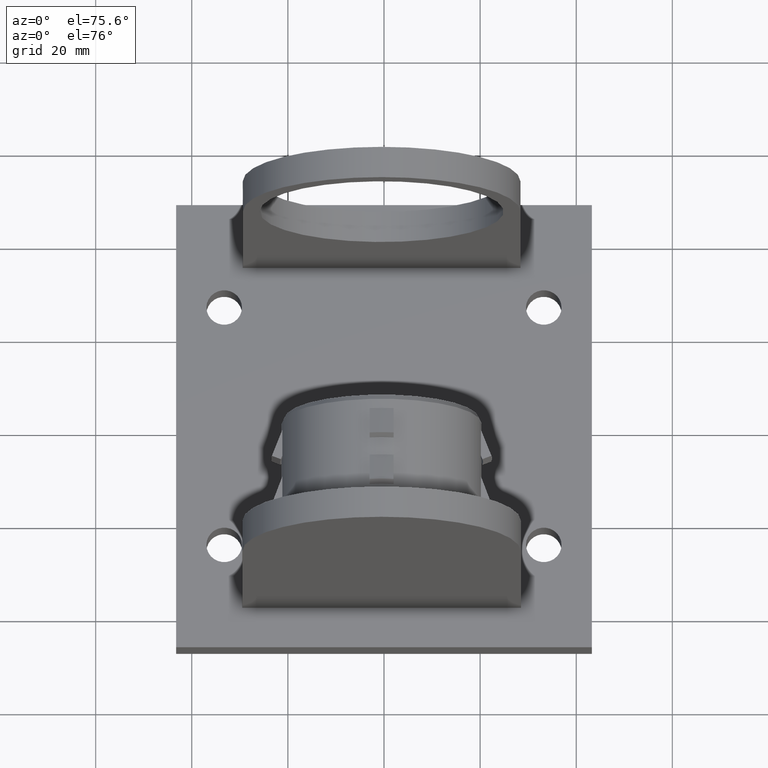
[diagram: clean part render]
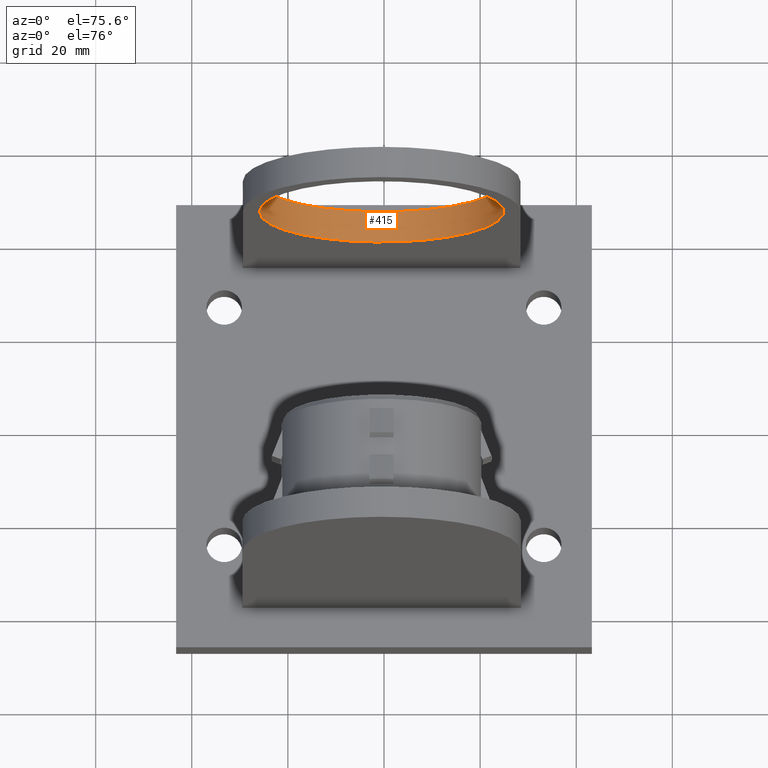
[diagram: same view with one face highlighted and labeled with its STEP entity id]
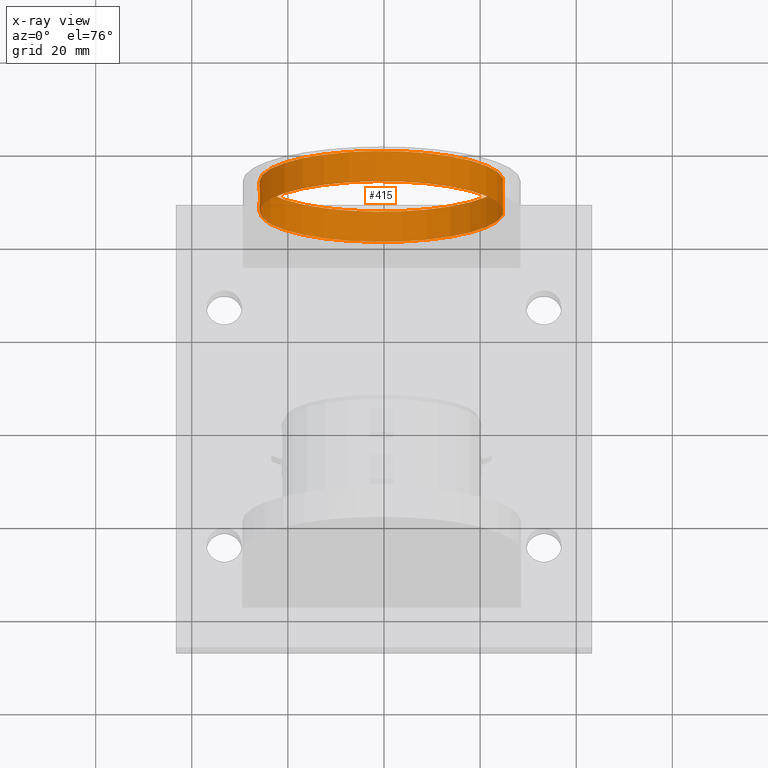
[diagram: x-ray of the same camera — body ghosted, the highlighted face saturated]
A machine part, auxiliary view. The second image highlights one B-rep face of the part: STEP entity #415.
The next image is the same camera in x-ray: the body ghosted, the highlighted face saturated — about 0% of this face is hidden behind the body in this view.
In plain terms, the highlighted cylindrical surface (bore or boss wall) has radius 25.4 mm, axis along (-0, 1, -0).
Its self-contained STEP definition (entity closure, byte-faithful):
#415=ADVANCED_FACE('',(#1532,#1534,#1536),#1538,.F.);
#1532=FACE_OUTER_BOUND('',#1533,.T.);
#1533=EDGE_LOOP('',(#2420));
#1534=FACE_BOUND('',#1535,.T.);
#1535=EDGE_LOOP('',(#2421,#2422,#2423));
#1536=FACE_OUTER_BOUND('',#1537,.T.);
#1537=EDGE_LOOP('',(#2424));
#1538=CYLINDRICAL_SURFACE('',#1539,25.4);
#1539=AXIS2_PLACEMENT_3D('',#1540,#1541,#1542);
#1540=CARTESIAN_POINT('',(0.,0.,0.));
#1541=DIRECTION('',(0.,1.,0.));
#1542=DIRECTION('',(1.,0.,0.));
#2420=ORIENTED_EDGE('',*,*,#3018,.F.);
#2421=ORIENTED_EDGE('',*,*,#3019,.T.);
#2422=ORIENTED_EDGE('',*,*,#3020,.T.);
#2423=ORIENTED_EDGE('',*,*,#3021,.T.);
#2424=ORIENTED_EDGE('',*,*,#3022,.F.);
#3018=EDGE_CURVE('',#3381,#3381,#3382,.F.);
#3019=EDGE_CURVE('',#3383,#3384,#3385,.F.);
#3020=EDGE_CURVE('',#3384,#3386,#3387,.F.);
#3021=EDGE_CURVE('',#3386,#3383,#3388,.T.);
#3022=EDGE_CURVE('',#3389,#3389,#3390,.T.);
#3381=VERTEX_POINT('',#4121);
#3382=CIRCLE('',#4122,25.4);
#3383=VERTEX_POINT('',#4126);
#3384=VERTEX_POINT('',#4127);
#3385=B_SPLINE_CURVE_WITH_KNOTS('',3,
(#4128,#4129,#4130,#4131,#4132,#4133,#4134,#4135,#4136,#4137,#4138,#4139,#4140,#4141,
#4142,#4143,#4144,#4145,#4146,#4147),
.UNSPECIFIED.,.F.,.F.,
(4,1,1,1,1,1,1,1,1,1,1,1,1,1,1,1,1,4),
(0.,0.0532258956022414,0.110858262969364,0.172919015062311,0.243831473463918,0.319162782098423,
0.394513457163386,0.46546832689459,0.532035012685195,0.598611051608997,0.678588266774245,
0.771906318465807,0.853343168117302,0.909480036282395,0.936878767804627,0.96070036101691,
0.980544681474811,1.),
.UNSPECIFIED.);
#3386=VERTEX_POINT('',#4148);
#3387=B_SPLINE_CURVE_WITH_KNOTS('',3,
(#4149,#4150,#4151,#4152,#4153,#4154,#4155,#4156,#4157,#4158,#4159,#4160,#4161,#4162,
#4163,#4164,#4165,#4166,#4167,#4168,#4169,#4170,#4171,#4172,#4173,#4174,#4175,#4176,
#4177,#4178,#4179,#4180,#4181,#4182,#4183,#4184,#4185,#4186,#4187,#4188,#4189,#4190,
#4191,#4192,#4193,#4194,#4195,#4196,#4197),
.UNSPECIFIED.,.F.,.F.,
(4,1,1,1,1,1,1,1,1,1,1,1,1,1,1,1,1,1,1,1,1,1,1,1,1,1,1,1,1,1,1,1,1,1,1,1,1,1,1,1,
1,1,1,1,1,1,4),
(0.,0.0115813740011568,0.0231840152737657,0.0348122041847782,0.0465174745855109,
0.058262887993896,0.0715505994411202,0.086341160113934,0.10834865825408,0.130619149959619,
0.153125449502113,0.168861282457993,0.183305718313062,0.196466439437563,0.209642322389445,
0.22347739132344,0.237950198812609,0.253715623366416,0.270145201478209,0.290251702070949,
0.313366538443733,0.348753679242503,0.384718229571973,0.421192803011968,0.446483810642777,
0.469269336247976,0.489157250807685,0.508684159124602,0.529672663707712,0.552479159120241,
0.579418314093613,0.608710752537695,0.65522060830907,0.701724762299884,0.74814999381496,
0.777295385672147,0.804066505542407,0.826235081660111,0.846147147074147,0.869526953458532,
0.892706778613375,0.915732143862818,0.932768456897555,0.949730510801622,0.966548965591262,
0.983309133906787,1.),
.UNSPECIFIED.);
#3388=B_SPLINE_CURVE_WITH_KNOTS('',3,
(#4198,#4199,#4200,#4201,#4202,#4203,#4204,#4205,#4206,#4207,#4208,#4209,#4210,#4211,
#4212,#4213,#4214,#4215,#4216,#4217,#4218,#4219,#4220,#4221,#4222,#4223,#4224,#4225,
#4226,#4227,#4228,#4229,#4230,#4231,#4232,#4233,#4234,#4235,#4236,#4237,#4238,#4239,
#4240,#4241,#4242,#4243,#4244,#4245,#4246,#4247,#4248,#4249,#4250,#4251,#4252,#4253,
#4254,#4255,#4256,#4257,#4258,#4259,#4260,#4261,#4262,#4263,#4264,#4265,#4266,#4267,
#4268,#4269,#4270,#4271,#4272,#4273,#4274,#4275,#4276,#4277,#4278,#4279,#4280,#4281,
#4282,#4283),
.UNSPECIFIED.,.F.,.F.,
(4,1,1,1,1,1,1,1,1,1,1,1,1,1,1,1,1,1,1,1,1,1,1,1,1,1,1,1,1,1,1,1,1,1,1,1,1,1,1,1,
1,1,1,1,1,1,1,1,1,1,1,1,1,1,1,1,1,1,1,1,1,1,1,1,1,1,1,1,1,1,1,1,1,1,1,1,1,1,1,1,
1,1,1,4),
(0.,0.00579079278219624,0.0115922198949768,0.0174064215502877,0.0232591653686539,
0.0291319814988926,0.0357759622841647,0.0431713829177083,0.0541753424009342,0.0653108008252765,
0.0765641633851887,0.0844322239750194,0.0916545704047439,0.0982350425629485,0.104823092565105,
0.111740741694882,0.118977269293776,0.126860128098847,0.135075080891889,0.145128551695782,
0.156686237406993,0.17438020244066,0.192362795012916,0.210600246621163,0.223245768607033,
0.234638554629141,0.24458260835175,0.254346247974565,0.264840886513005,0.27624469166652,
0.28971497593946,0.304361901696508,0.327617081088998,0.350866787719869,0.374074851260756,
0.388639872058287,0.40201641852919,0.413085434421995,0.423021469855119,0.434673060197285,
0.449051075376477,0.46331494885318,0.474582612623621,0.482941660794083,0.491277148594478,
0.499587772842145,0.507898133527896,0.516230613842046,0.524584992169637,0.53583907431205,
0.550073116892523,0.564412538719046,0.5760242021196,0.585919131724188,0.596939091218687,
0.610256751456337,0.624760102642942,0.647859894232811,0.670986207636648,0.694102677586308,
0.708633153441583,0.721980525892534,0.732941365913109,0.742681430191791,0.753775587234394,
0.768686386974321,0.787440202022863,0.807424065973025,0.828173856985117,0.847264471745045,
0.864724601039774,0.879761353923059,0.894781575087806,0.908654848630762,0.921377996087476,
0.93199481434065,0.941639946401027,0.952307546495409,0.962086067511845,0.970993563625042,
0.976697078015885,0.982074499880376,0.989734589176251,1.),
.UNSPECIFIED.);
#3389=VERTEX_POINT('',#4284);
#3390=CIRCLE('',#4285,25.4);
#4121=CARTESIAN_POINT('',(25.4,6.5,0.));
#4122=AXIS2_PLACEMENT_3D('',#4123,#4124,#4125);
#4123=CARTESIAN_POINT('',(0.,6.5,0.));
#4124=DIRECTION('',(-0.,1.,0.));
#4125=DIRECTION('',(1.,0.,0.));
#4126=CARTESIAN_POINT('',(25.4,5.25,3.11060286983428E-015));
#4127=CARTESIAN_POINT('',(25.3211374152109,3.25,2.));
#4128=CARTESIAN_POINT('',(25.321137415211,3.25000000000001,2.));
#4129=CARTESIAN_POINT('',(25.3211347749922,3.30577578280402,2.00000772070273));
#4130=CARTESIAN_POINT('',(25.3215234232463,3.42191856841689,1.99513404797646));
#4131=CARTESIAN_POINT('',(25.3233530703141,3.60171957648187,1.97182911961147));
#4132=CARTESIAN_POINT('',(25.3267700589909,3.79667701864491,1.927625728344));
#4133=CARTESIAN_POINT('',(25.3320480145119,4.00356369771042,1.85735731488503));
#4134=CARTESIAN_POINT('',(25.339183213885,4.21363774115832,1.7578723745155));
#4135=CARTESIAN_POINT('',(25.3474877140229,4.41051292961177,1.63427329641079));
#4136=CARTESIAN_POINT('',(25.3561196323692,4.58468931171807,1.49471822350896));
#4137=CARTESIAN_POINT('',(25.3645902021175,4.73626218961535,1.34373340448209));
#4138=CARTESIAN_POINT('',(25.3732471475172,4.87722483672992,1.17041802062724));
#4139=CARTESIAN_POINT('',(25.3822918181538,5.01253967419867,0.95826820417137));
#4140=CARTESIAN_POINT('',(25.3903638576692,5.124446202166,0.715320410602871));
#4141=CARTESIAN_POINT('',(25.3956941879922,5.19474425703927,0.483480847213711));
#4142=CARTESIAN_POINT('',(25.3981818888508,5.22680270508347,0.313416126607503));
#4143=CARTESIAN_POINT('',(25.399241093553,5.24034384135336,0.201724653261699));
#4144=CARTESIAN_POINT('',(25.3997104591156,5.24632074591799,0.127570192503804));
#4145=CARTESIAN_POINT('',(25.3999503744477,5.24937011885457,0.0615610844279687));
#4146=CARTESIAN_POINT('',(25.4000000130291,5.24999971761274,0.0203940936936396));
#4147=CARTESIAN_POINT('',(25.4,5.25,2.63163182822099E-013));
#4148=CARTESIAN_POINT('',(25.4,1.24999999344787,3.11060286983428E-015));
#4149=CARTESIAN_POINT('',(25.4,1.24999999672393,1.83027965199067E-013));
#4150=CARTESIAN_POINT('',(25.4000000053982,1.24999998271527,0.0121350738489025));
#4151=CARTESIAN_POINT('',(25.3999825867385,1.25022110641012,0.0364266974146351));
#4152=CARTESIAN_POINT('',(25.3999041561444,1.25121745125587,0.072887801299095));
#4153=CARTESIAN_POINT('',(25.3997729721682,1.25288499323279,0.109452459632476));
#4154=CARTESIAN_POINT('',(25.3995885180641,1.25523202825688,0.1461280531851));
#4155=CARTESIAN_POINT('',(25.3993400966671,1.25839723697261,0.1844854415031));
#4156=CARTESIAN_POINT('',(25.3990072835822,1.26264521922079,0.225987776185184));
#4157=CARTESIAN_POINT('',(25.398499859429,1.26913782853401,0.278053686532299));
#4158=CARTESIAN_POINT('',(25.397765680292,1.27856721136325,0.339214556633012));
#4159=CARTESIAN_POINT('',(25.3967548709863,1.29162675900725,0.407951579025057));
#4160=CARTESIAN_POINT('',(25.3956779170648,1.30564244480046,0.469776304944183));
#4161=CARTESIAN_POINT('',(25.3946244665134,1.31945521938644,0.523208170587366));
#4162=CARTESIAN_POINT('',(25.3936847536685,1.33185616264539,0.566878892836352));
#4163=CARTESIAN_POINT('',(25.3927393437003,1.34441249795763,0.60770630715519));
#4164=CARTESIAN_POINT('',(25.3917521307232,1.35761033513918,0.647658663094476));
#4165=CARTESIAN_POINT('',(25.3906752285618,1.37211128174411,0.688616979635936));
#4166=CARTESIAN_POINT('',(25.3894693542341,1.38848080226231,0.731777941426021));
#4167=CARTESIAN_POINT('',(25.3881254057351,1.4068941240947,0.777054392310659));
#4168=CARTESIAN_POINT('',(25.3865429388405,1.42880605261886,0.827257152509702));
#4169=CARTESIAN_POINT('',(25.3846447181345,1.45542947315557,0.883773549141204));
#4170=CARTESIAN_POINT('',(25.3820083694821,1.49302068690264,0.957016321830038));
#4171=CARTESIAN_POINT('',(25.3786418451006,1.54219689861165,1.04287889778705));
#4172=CARTESIAN_POINT('',(25.3745707777797,1.60372280942826,1.13757953482733));
#4173=CARTESIAN_POINT('',(25.3707179076836,1.66427369421494,1.22009962591363));
#4174=CARTESIAN_POINT('',(25.3673012644521,1.72004457298943,1.2888514885042));
#4175=CARTESIAN_POINT('',(25.3645191779758,1.7669257257532,1.34238217244595));
#4176=CARTESIAN_POINT('',(25.3619562166955,1.81144584696074,1.38990609256177));
#4177=CARTESIAN_POINT('',(25.3594618152158,1.85608668905483,1.43469702915622));
#4178=CARTESIAN_POINT('',(25.3568511506309,1.90435542737465,1.4801412935564));
#4179=CARTESIAN_POINT('',(25.353953221519,1.95999003846175,1.52902368843503));
#4180=CARTESIAN_POINT('',(25.3507564673164,2.0242471969207,1.5811803813008));
#4181=CARTESIAN_POINT('',(25.346692813881,2.11069300807998,1.64523154782165));
#4182=CARTESIAN_POINT('',(25.3420559523131,2.21800139457109,1.71525448966089));
#4183=CARTESIAN_POINT('',(25.3371631279532,2.34584850630988,1.7859499687477));
#4184=CARTESIAN_POINT('',(25.3333151882519,2.46200116413092,1.83952150473391));
#4185=CARTESIAN_POINT('',(25.3304419265615,2.56184311242159,1.87856714593366));
#4186=CARTESIAN_POINT('',(25.3284663113271,2.63926113830867,1.90498688646913));
#4187=CARTESIAN_POINT('',(25.3269029307302,2.70836845055689,1.92564118426463));
#4188=CARTESIAN_POINT('',(25.3255694804716,2.7746835414105,1.94309545914169));
#4189=CARTESIAN_POINT('',(25.3243810609046,2.84258628227844,1.95851929300283));
#4190=CARTESIAN_POINT('',(25.3233301766667,2.91420485638797,1.9720542830005));
#4191=CARTESIAN_POINT('',(25.3225542907608,2.97969739429802,1.98198556416753));
#4192=CARTESIAN_POINT('',(25.32199794272,3.03900160243389,1.98907785829387));
#4193=CARTESIAN_POINT('',(25.3216119031953,3.09200430010022,1.99398505988896));
#4194=CARTESIAN_POINT('',(25.3213375228383,3.14483493225379,1.99746549660869));
#4195=CARTESIAN_POINT('',(25.3211737504211,3.19746143135597,1.99954016191383));
#4196=CARTESIAN_POINT('',(25.3211373920547,3.2325103060364,2.00000006352898));
#4197=CARTESIAN_POINT('',(25.321137415211,3.25000000000001,2.));
#4198=CARTESIAN_POINT('',(25.4,1.24999999672393,1.76808737860282E-013));
#4199=CARTESIAN_POINT('',(25.4000000053982,1.24999998271565,-0.0121350717470792));
#4200=CARTESIAN_POINT('',(25.3999825867438,1.25022110634271,-0.0364266916306569));
#4201=CARTESIAN_POINT('',(25.3999041561745,1.25121745087388,-0.0728877900414339));
#4202=CARTESIAN_POINT('',(25.3997729722303,1.25288499244346,-0.109452444967278));
#4203=CARTESIAN_POINT('',(25.3995885181559,1.25523202708855,-0.146128037247272));
#4204=CARTESIAN_POINT('',(25.3993400967653,1.25839723572063,-0.184485428296467));
#4205=CARTESIAN_POINT('',(25.3990072836433,1.26264521844033,-0.225987769948555));
#4206=CARTESIAN_POINT('',(25.3984998593539,1.26913782949371,-0.278053694634442));
#4207=CARTESIAN_POINT('',(25.3977656799883,1.27856721526797,-0.339214580466995));
#4208=CARTESIAN_POINT('',(25.396754870439,1.29162676609694,-0.407951613641079));
#4209=CARTESIAN_POINT('',(25.3956779163695,1.30564245387618,-0.469776342607813));
#4210=CARTESIAN_POINT('',(25.3946244658699,1.31945522785889,-0.523208201331443));
#4211=CARTESIAN_POINT('',(25.3936847535348,1.33185616443547,-0.566878898036511));
#4212=CARTESIAN_POINT('',(25.3927393444603,1.3444124878631,-0.607706274438617));
#4213=CARTESIAN_POINT('',(25.3917521325766,1.3576103103102,-0.64765858954356));
#4214=CARTESIAN_POINT('',(25.3906752315036,1.3721112420094,-0.688616870493353));
#4215=CARTESIAN_POINT('',(25.3894693577664,1.38848075410062,-0.731777818832404));
#4216=CARTESIAN_POINT('',(25.3881254089913,1.40689407920633,-0.777054286578328));
#4217=CARTESIAN_POINT('',(25.3865429402085,1.4288060333841,-0.827257112448327));
#4218=CARTESIAN_POINT('',(25.3846447155848,1.4554295088208,-0.883773625777688));
#4219=CARTESIAN_POINT('',(25.3820083615786,1.49302080029762,-0.957016535521832));
#4220=CARTESIAN_POINT('',(25.3786418383403,1.54219700023434,-1.0428790563674));
#4221=CARTESIAN_POINT('',(25.3745707890809,1.60372263885732,-1.13757927172179));
#4222=CARTESIAN_POINT('',(25.3707179327491,1.66427329704514,-1.22009909765783));
#4223=CARTESIAN_POINT('',(25.3673013088284,1.72004384184859,-1.2888506082985));
#4224=CARTESIAN_POINT('',(25.3645192409269,1.76692465236017,-1.34238097973477));
#4225=CARTESIAN_POINT('',(25.3619562893305,1.81144456753192,-1.38990476685351));
#4226=CARTESIAN_POINT('',(25.3594618792782,1.85608552053996,-1.43469590052564));
#4227=CARTESIAN_POINT('',(25.3568511845549,1.90435477829648,-1.48014072042828));
#4228=CARTESIAN_POINT('',(25.3539532077931,1.95999029127657,-1.52902392625171));
#4229=CARTESIAN_POINT('',(25.3507564065188,2.02424843638919,-1.58118136318968));
#4230=CARTESIAN_POINT('',(25.3466927781659,2.11069383582738,-1.64523208409235));
#4231=CARTESIAN_POINT('',(25.3420561418045,2.21799702824243,-1.71525162553382));
#4232=CARTESIAN_POINT('',(25.3371637606775,2.34583167989882,-1.78594088782783));
#4233=CARTESIAN_POINT('',(25.3333166373759,2.46195627539746,-1.8395014449155));
#4234=CARTESIAN_POINT('',(25.3304444270793,2.56175325542072,-1.87853334526151));
#4235=CARTESIAN_POINT('',(25.3284702436924,2.6391012370903,-1.90493452543279));
#4236=CARTESIAN_POINT('',(25.3269084742143,2.70811363897242,-1.92556820061666));
#4237=CARTESIAN_POINT('',(25.3255772942996,2.77427582058005,-1.94299353391429));
#4238=CARTESIAN_POINT('',(25.3242898078238,2.84775753773507,-1.95970406163844));
#4239=CARTESIAN_POINT('',(25.3230974021363,2.93078922179299,-1.97504583155972));
#4240=CARTESIAN_POINT('',(25.3221985637638,3.01363325464815,-1.98652642935026));
#4241=CARTESIAN_POINT('',(25.3216544132365,3.08431288076968,-1.99344563223591));
#4242=CARTESIAN_POINT('',(25.3213463762378,3.14277374579705,-1.99735331170461));
#4243=CARTESIAN_POINT('',(25.3211788683475,3.19512632144187,-1.99947525569717));
#4244=CARTESIAN_POINT('',(25.3211195827014,3.24741456341149,-2.00022573174965));
#4245=CARTESIAN_POINT('',(25.3211681861185,3.29969811597005,-1.99961049889869));
#4246=CARTESIAN_POINT('',(25.3213249534955,3.35203899250343,-1.99762481573297));
#4247=CARTESIAN_POINT('',(25.3216208180739,3.41046474853455,-1.99387219488805));
#4248=CARTESIAN_POINT('',(25.3221497149887,3.48106110127868,-1.98714866085509));
#4249=CARTESIAN_POINT('',(25.3230295368049,3.56376436645009,-1.97591510797106));
#4250=CARTESIAN_POINT('',(25.3242012435122,3.64661443424337,-1.96084740104124));
#4251=CARTESIAN_POINT('',(25.3254687288754,3.71989981973956,-1.94440737165358));
#4252=CARTESIAN_POINT('',(25.326780247266,3.78585113424241,-1.92725318154218));
#4253=CARTESIAN_POINT('',(25.3283200581946,3.8546298755251,-1.90692899401129));
#4254=CARTESIAN_POINT('',(25.3302684735103,3.93173002116801,-1.88090222652421));
#4255=CARTESIAN_POINT('',(25.3331057374642,4.031218792802,-1.84239862360208));
#4256=CARTESIAN_POINT('',(25.3369092263783,4.14698856631072,-1.78953795131577));
#4257=CARTESIAN_POINT('',(25.3417498005439,4.27443748903579,-1.71975757468402));
#4258=CARTESIAN_POINT('',(25.346338830421,4.38139526881979,-1.65066291575027));
#4259=CARTESIAN_POINT('',(25.3503600744326,4.46752120106239,-1.58751360500576));
#4260=CARTESIAN_POINT('',(25.3534943912229,4.53094413720658,-1.53659732398471));
#4261=CARTESIAN_POINT('',(25.3562793251423,4.58479543994338,-1.48987640309344));
#4262=CARTESIAN_POINT('',(25.3588979204264,4.63363649031994,-1.44463808484609));
#4263=CARTESIAN_POINT('',(25.3618504043617,4.68685421495169,-1.39200918371138));
#4264=CARTESIAN_POINT('',(25.3655398326243,4.75075480126689,-1.3234343916756));
#4265=CARTESIAN_POINT('',(25.3699065290622,4.82291009541834,-1.23729217125501));
#4266=CARTESIAN_POINT('',(25.3746084407355,4.89697092354411,-1.13707808953987));
#4267=CARTESIAN_POINT('',(25.3791132489955,4.96486392672293,-1.03173048077152));
#4268=CARTESIAN_POINT('',(25.3831483197667,5.02345634135291,-0.926958401939839));
#4269=CARTESIAN_POINT('',(25.3865002467367,5.07070855269231,-0.829760331399152));
#4270=CARTESIAN_POINT('',(25.38932330816,5.10960741896001,-0.738128512691322));
#4271=CARTESIAN_POINT('',(25.3916839936746,5.14153441817101,-0.651802951327658));
#4272=CARTESIAN_POINT('',(25.39367415011,5.16803837927838,-0.568734335080992));
#4273=CARTESIAN_POINT('',(25.3952381225093,5.18861418083113,-0.493531283294668));
#4274=CARTESIAN_POINT('',(25.3964486358419,5.20439589997511,-0.426250133816083));
#4275=CARTESIAN_POINT('',(25.397435859634,5.21717900530278,-0.362720755039104));
#4276=CARTESIAN_POINT('',(25.3982484141339,5.22763813928099,-0.300541014766877));
#4277=CARTESIAN_POINT('',(25.3988923826519,5.23588774669894,-0.239584328660515));
#4278=CARTESIAN_POINT('',(25.399312586373,5.24125223678109,-0.188756045242759));
#4279=CARTESIAN_POINT('',(25.3995824666185,5.24469086014044,-0.147012947215914));
#4280=CARTESIAN_POINT('',(25.3997822263769,5.24723280870157,-0.107826428848447));
#4281=CARTESIAN_POINT('',(25.3999522984921,5.24939448217081,-0.0590488759335378));
#4282=CARTESIAN_POINT('',(25.400000040245,5.25000016295026,-0.0214999047012991));
#4283=CARTESIAN_POINT('',(25.4,5.25,-1.83697019872103E-016));
#4284=CARTESIAN_POINT('',(25.4,0.,0.));
#4285=AXIS2_PLACEMENT_3D('',#4286,#4287,#4288);
#4286=CARTESIAN_POINT('',(0.,0.,0.));
#4287=DIRECTION('',(-0.,1.,0.));
#4288=DIRECTION('',(1.,0.,0.));